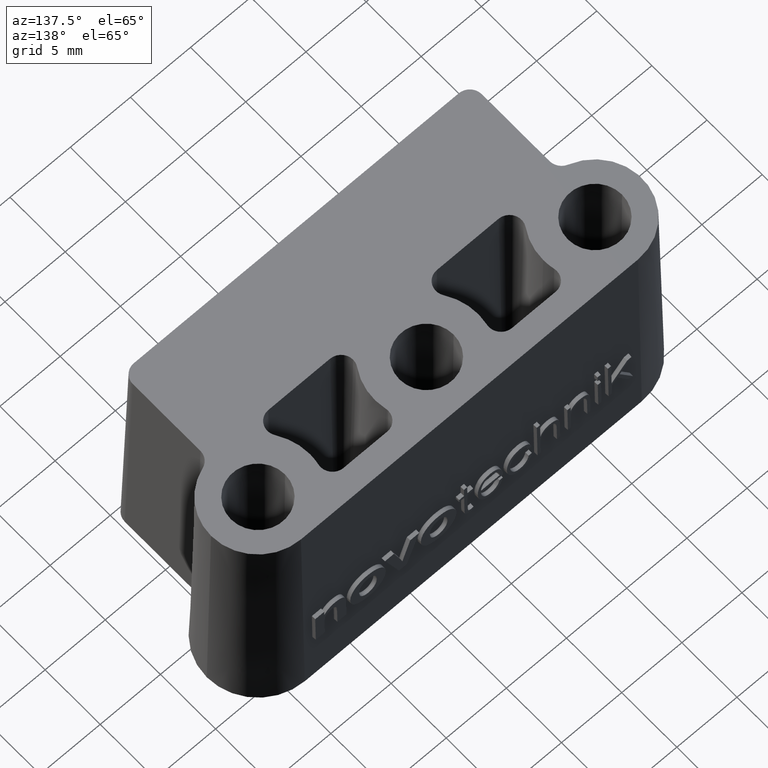
[diagram: clean part render]
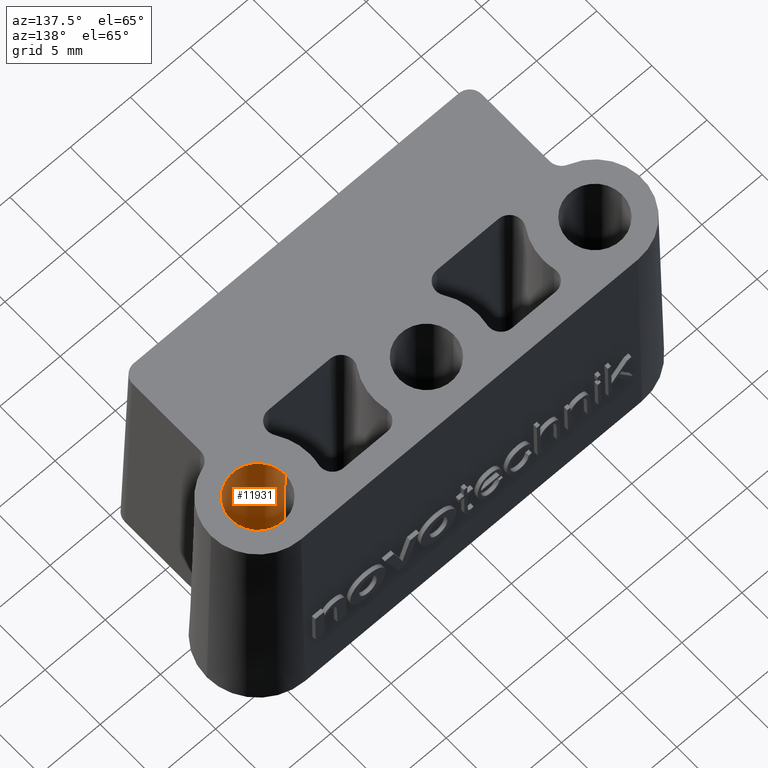
[diagram: same view with one face highlighted and labeled with its STEP entity id]
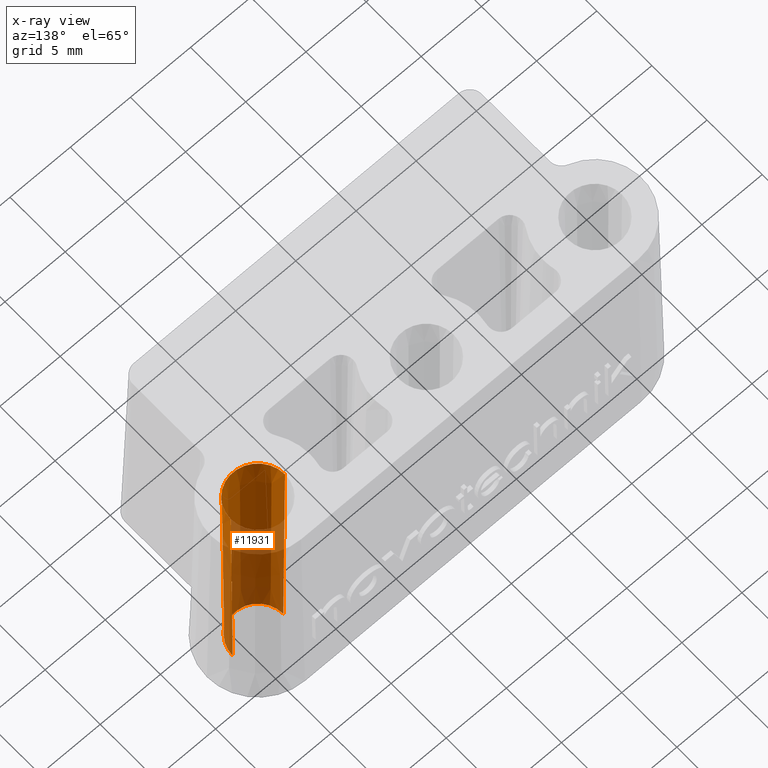
[diagram: x-ray of the same camera — body ghosted, the highlighted face saturated]
A machine part, auxiliary view. The second image highlights one B-rep face of the part: STEP entity #11931.
The next image is the same camera in x-ray: the body ghosted, the highlighted face saturated — about 57% of this face is hidden behind the body in this view.
In plain terms, the highlighted conical surface has half-angle 0.43 deg.
Its self-contained STEP definition (entity closure, byte-faithful):
#3918 = EDGE_CURVE ( 'NONE', #15480, #15424, #33684, .T. ) ;
#3937 = EDGE_CURVE ( 'NONE', #15480, #15417, #32594, .T. ) ;
#3948 = EDGE_CURVE ( 'NONE', #15417, #6696, #33672, .T. ) ;
#3957 = EDGE_CURVE ( 'NONE', #15424, #6696, #32313, .T. ) ;
#6696 = VERTEX_POINT ( 'NONE', #22203 ) ;
#11931 = ADVANCED_FACE ( 'NONE', ( #27886 ), #19491, .F. ) ;
#14849 = ORIENTED_EDGE ( 'NONE', *, *, #3918, .F. ) ;
#14851 = ORIENTED_EDGE ( 'NONE', *, *, #3937, .T. ) ;
#14993 = ORIENTED_EDGE ( 'NONE', *, *, #3948, .T. ) ;
#14995 = ORIENTED_EDGE ( 'NONE', *, *, #3957, .F. ) ;
#15100 = EDGE_LOOP ( 'NONE', ( #14849, #14851, #14993, #14995 ) ) ;
#15417 = VERTEX_POINT ( 'NONE', #16193 ) ;
#15424 = VERTEX_POINT ( 'NONE', #16210 ) ;
#15480 = VERTEX_POINT ( 'NONE', #16439 ) ;
#16193 = CARTESIAN_POINT ( 'NONE',  ( 11.75000359188055100, 32.29999999999999700, 20.00000000000000000 ) ) ;
#16210 = CARTESIAN_POINT ( 'NONE',  ( 16.10000000000000100, 32.29999999999999700, 0.0000000000000000000 ) ) ;
#16439 = CARTESIAN_POINT ( 'NONE',  ( 11.89999999999999900, 32.29999999999999700, 0.0000000000000000000 ) ) ;
#19491 = CONICAL_SURFACE ( 'NONE', #19502, 2.100000000000001000, 0.007499679795819651000 ) ;
#19502 = AXIS2_PLACEMENT_3D ( 'NONE', #27885, #27887, #27878 ) ;
#22203 = CARTESIAN_POINT ( 'NONE',  ( 16.24999640811944700, 32.29999999999999700, 20.00000000000000000 ) ) ;
#27878 = DIRECTION ( 'NONE',  ( 1.000000000000000000, 0.0000000000000000000, 0.0000000000000000000 ) ) ;
#27885 = CARTESIAN_POINT ( 'NONE',  ( 13.99999999999999800, 32.29999999999999700, 0.0000000000000000000 ) ) ;
#27886 = FACE_OUTER_BOUND ( 'NONE', #15100, .T. ) ;
#27887 = DIRECTION ( 'NONE',  ( 0.0000000000000000000, 0.0000000000000000000, 1.000000000000000000 ) ) ;
#32307 = CARTESIAN_POINT ( 'NONE',  ( 16.10000000000000100, 32.29999999999999700, 0.0000000000000000000 ) ) ;
#32313 = LINE ( 'NONE', #32307, #34092 ) ;
#32374 = DIRECTION ( 'NONE',  ( 1.000000000000000000, 0.0000000000000000000, 0.0000000000000000000 ) ) ;
#32382 = DIRECTION ( 'NONE',  ( 0.0000000000000000000, 0.0000000000000000000, 1.000000000000000000 ) ) ;
#32387 = CARTESIAN_POINT ( 'NONE',  ( 13.99999999999999800, 32.29999999999999700, 0.0000000000000000000 ) ) ;
#32430 = DIRECTION ( 'NONE',  ( 0.007499609492522719600, 0.0000000000000000000, 0.9999718775332932000 ) ) ;
#32446 = DIRECTION ( 'NONE',  ( 1.000000000000000000, 0.0000000000000000000, 0.0000000000000000000 ) ) ;
#32455 = CARTESIAN_POINT ( 'NONE',  ( 13.99999999999999800, 32.29999999999999700, 20.00000000000000000 ) ) ;
#32457 = DIRECTION ( 'NONE',  ( 0.0000000000000000000, 0.0000000000000000000, 1.000000000000000000 ) ) ;
#32534 = DIRECTION ( 'NONE',  ( -0.007499609492522719600, 9.184372759873053400E-019, 0.9999718775332932000 ) ) ;
#32543 = CARTESIAN_POINT ( 'NONE',  ( 11.89999999999999900, 32.29999999999999700, 0.0000000000000000000 ) ) ;
#32594 = LINE ( 'NONE', #32543, #33989 ) ;
#33654 = AXIS2_PLACEMENT_3D ( 'NONE', #32455, #32457, #32446 ) ;
#33672 = CIRCLE ( 'NONE', #33654, 2.249996408119448800 ) ;
#33684 = CIRCLE ( 'NONE', #33690, 2.100000000000001000 ) ;
#33690 = AXIS2_PLACEMENT_3D ( 'NONE', #32387, #32382, #32374 ) ;
#33989 = VECTOR ( 'NONE', #32534, 1000.000000000000100 ) ;
#34092 = VECTOR ( 'NONE', #32430, 1000.000000000000100 ) ;